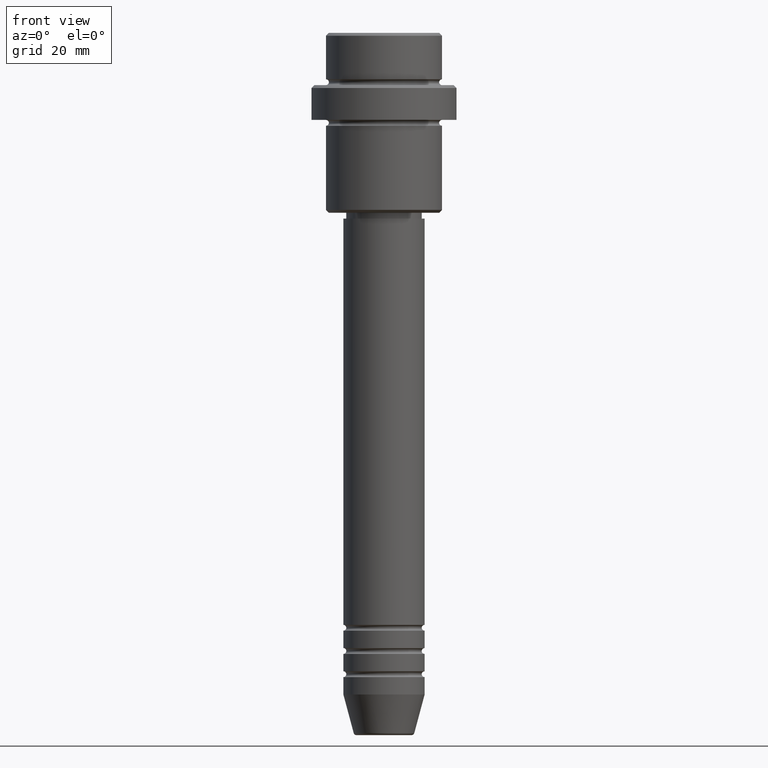
[diagram: clean part render]
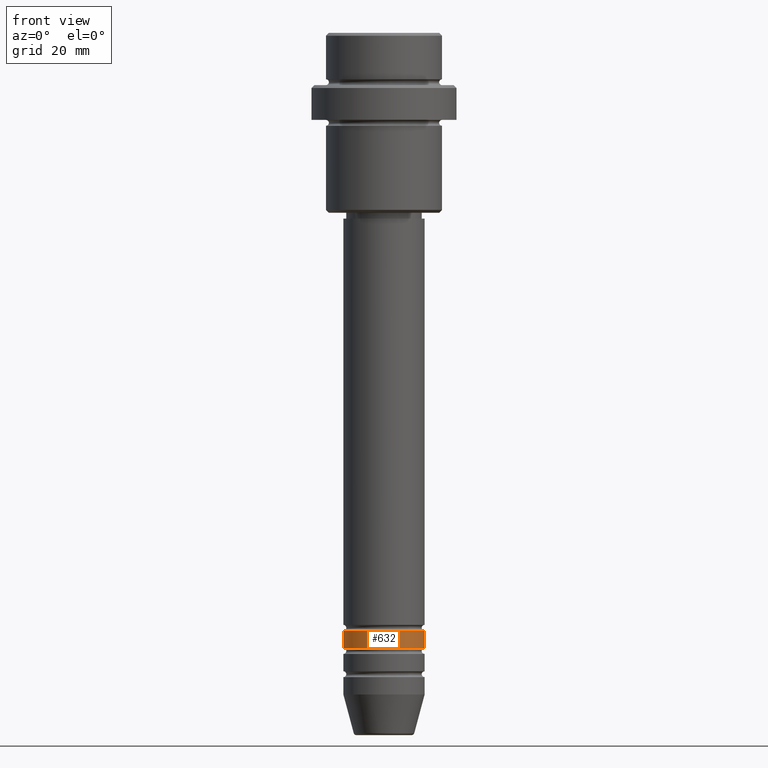
[diagram: same view with one face highlighted and labeled with its STEP entity id]
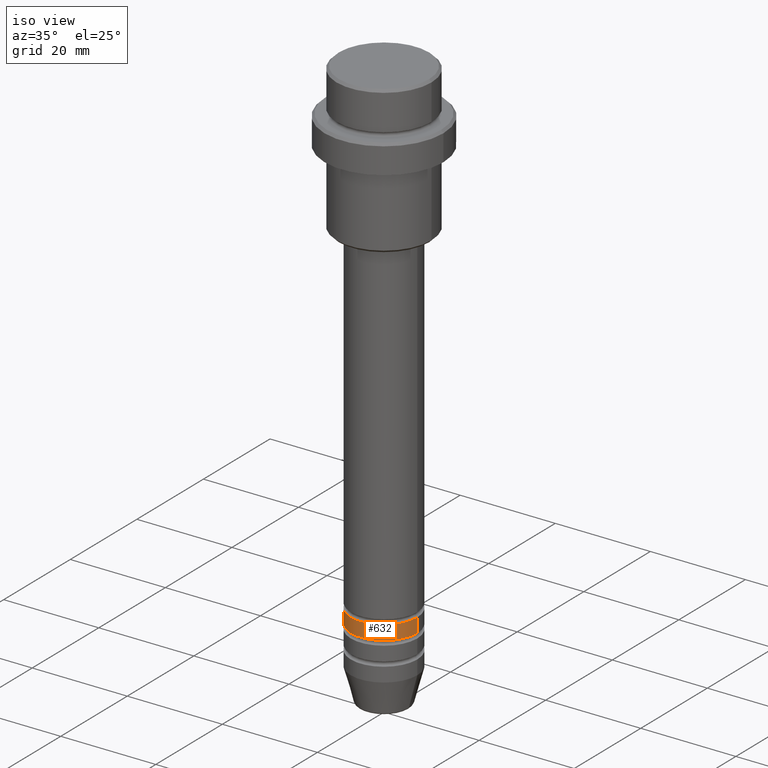
[diagram: same view with one face highlighted and labeled with its STEP entity id]
A machine part, front view. The second image highlights one B-rep face of the part: STEP entity #632.
A second angle (iso view) of the same face is appended — the face is thin or edge-on in the first view.
In plain terms, the highlighted cylindrical surface (partial cylindrical patch) has radius 7 mm, axis along (-0, -0, 1).
Its self-contained STEP definition (entity closure, byte-faithful):
#8 = AXIS2_PLACEMENT_3D ( 'NONE', #53, #1057, #610 ) ;
#31 = AXIS2_PLACEMENT_3D ( 'NONE', #1183, #860, #1302 ) ;
#53 = CARTESIAN_POINT ( 'NONE',  ( 0.000000000000000000, 0.000000000000000000, -105.9999999999998721 ) ) ;
#55 = CIRCLE ( 'NONE', #31, 7.000000000000000000 ) ;
#69 = EDGE_CURVE ( 'NONE', #1386, #125, #907, .T. ) ;
#117 = VERTEX_POINT ( 'NONE', #1260 ) ;
#125 = VERTEX_POINT ( 'NONE', #724 ) ;
#292 = DIRECTION ( 'NONE',  ( -0.000000000000000000, -0.000000000000000000, 1.000000000000000000 ) ) ;
#364 = EDGE_CURVE ( 'NONE', #125, #1150, #55, .T. ) ;
#372 = CARTESIAN_POINT ( 'NONE',  ( -7.000000000000000000, 8.572527594031473190E-16, 0.000000000000000000 ) ) ;
#404 = CARTESIAN_POINT ( 'NONE',  ( -7.000000000000000000, 8.572527594031473190E-16, -105.9999999999998721 ) ) ;
#406 = EDGE_CURVE ( 'NONE', #117, #1150, #971, .T. ) ;
#429 = CARTESIAN_POINT ( 'NONE',  ( 7.000000000000000000, 0.000000000000000000, 0.000000000000000000 ) ) ;
#501 = DIRECTION ( 'NONE',  ( 1.000000000000000000, 0.000000000000000000, 0.000000000000000000 ) ) ;
#610 = DIRECTION ( 'NONE',  ( 1.000000000000000000, 0.000000000000000000, 0.000000000000000000 ) ) ;
#632 = ADVANCED_FACE ( 'NONE', ( #910 ), #1144, .T. ) ;
#637 = VECTOR ( 'NONE', #1243, 1000.000000000000000 ) ;
#645 = CARTESIAN_POINT ( 'NONE',  ( 7.000000000000000000, 0.000000000000000000, -102.9999999999998721 ) ) ;
#675 = EDGE_CURVE ( 'NONE', #1386, #117, #936, .T. ) ;
#715 = EDGE_LOOP ( 'NONE', ( #1205, #941, #1048, #969 ) ) ;
#724 = CARTESIAN_POINT ( 'NONE',  ( -7.000000000000000000, 8.572527594031473190E-16, -102.9999999999998721 ) ) ;
#854 = DIRECTION ( 'NONE',  ( -0.000000000000000000, -0.000000000000000000, 1.000000000000000000 ) ) ;
#860 = DIRECTION ( 'NONE',  ( -0.000000000000000000, -0.000000000000000000, 1.000000000000000000 ) ) ;
#907 = LINE ( 'NONE', #372, #637 ) ;
#910 = FACE_OUTER_BOUND ( 'NONE', #715, .T. ) ;
#936 = CIRCLE ( 'NONE', #8, 7.000000000000000000 ) ;
#941 = ORIENTED_EDGE ( 'NONE', *, *, #675, .T. ) ;
#969 = ORIENTED_EDGE ( 'NONE', *, *, #364, .F. ) ;
#971 = LINE ( 'NONE', #429, #1122 ) ;
#1048 = ORIENTED_EDGE ( 'NONE', *, *, #406, .T. ) ;
#1057 = DIRECTION ( 'NONE',  ( -0.000000000000000000, -0.000000000000000000, 1.000000000000000000 ) ) ;
#1122 = VECTOR ( 'NONE', #854, 1000.000000000000000 ) ;
#1144 = CYLINDRICAL_SURFACE ( 'NONE', #1263, 7.000000000000000000 ) ;
#1150 = VERTEX_POINT ( 'NONE', #645 ) ;
#1158 = CARTESIAN_POINT ( 'NONE',  ( 0.000000000000000000, 0.000000000000000000, 0.000000000000000000 ) ) ;
#1183 = CARTESIAN_POINT ( 'NONE',  ( 0.000000000000000000, 0.000000000000000000, -102.9999999999998721 ) ) ;
#1205 = ORIENTED_EDGE ( 'NONE', *, *, #69, .F. ) ;
#1243 = DIRECTION ( 'NONE',  ( -0.000000000000000000, -0.000000000000000000, 1.000000000000000000 ) ) ;
#1260 = CARTESIAN_POINT ( 'NONE',  ( 7.000000000000000000, 0.000000000000000000, -105.9999999999998721 ) ) ;
#1263 = AXIS2_PLACEMENT_3D ( 'NONE', #1158, #292, #501 ) ;
#1302 = DIRECTION ( 'NONE',  ( 1.000000000000000000, 0.000000000000000000, 0.000000000000000000 ) ) ;
#1386 = VERTEX_POINT ( 'NONE', #404 ) ;